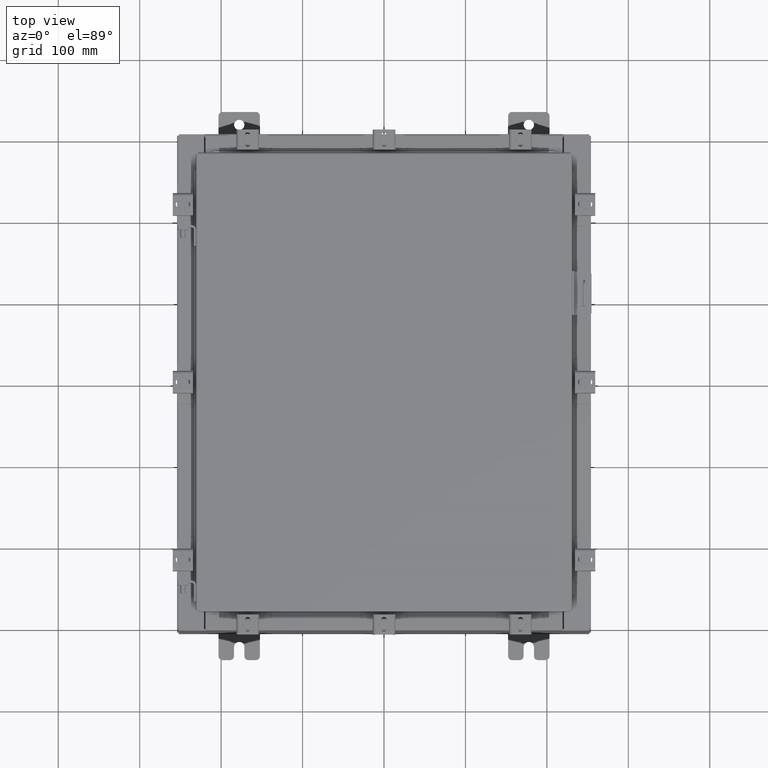
[diagram: clean part render]
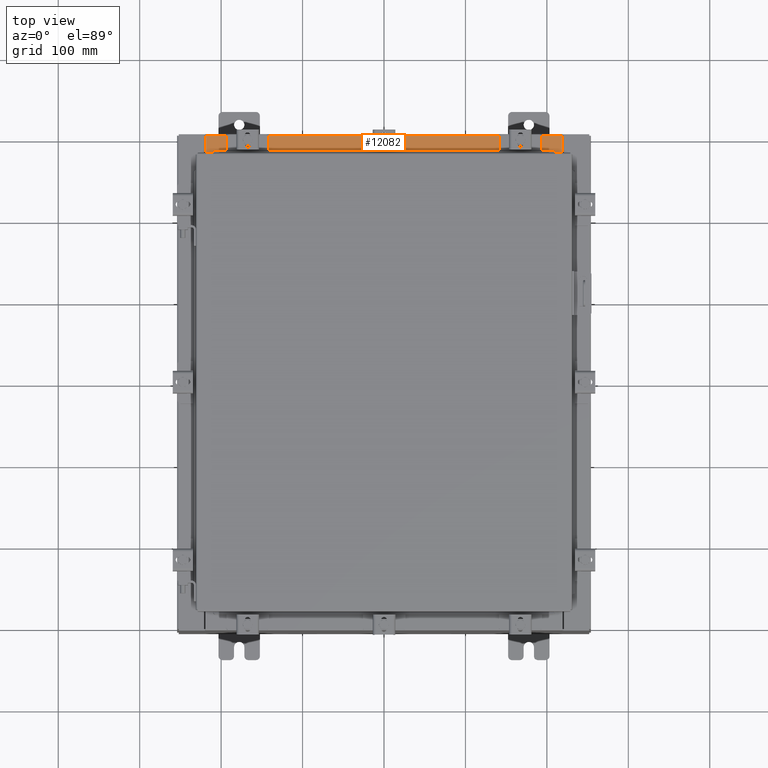
[diagram: same view with one face highlighted and labeled with its STEP entity id]
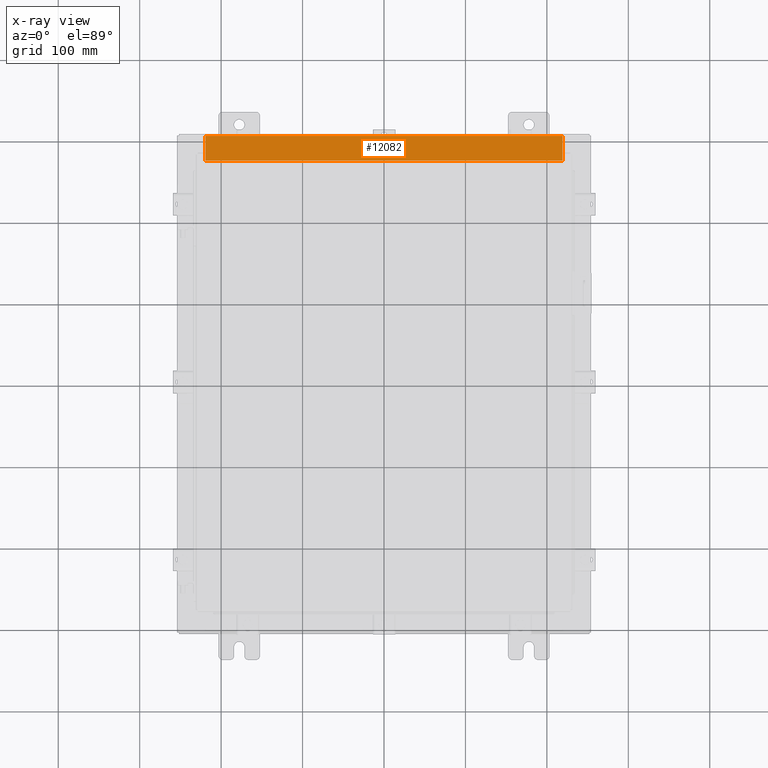
[diagram: x-ray of the same camera — body ghosted, the highlighted face saturated]
A machine part, top view. The second image highlights one B-rep face of the part: STEP entity #12082.
The next image is the same camera in x-ray: the body ghosted, the highlighted face saturated — about 0% of this face is hidden behind the body in this view.
In plain terms, the highlighted planar face has unit normal (0, 0, 1).
Its self-contained STEP definition (entity closure, byte-faithful):
#254 = PLANE ( 'NONE',  #12323 ) ;
#1150 = VERTEX_POINT ( 'NONE', #15856 ) ;
#1496 = VECTOR ( 'NONE', #10848, 39.37007874015748100 ) ;
#2033 = FACE_OUTER_BOUND ( 'NONE', #5697, .T. ) ;
#4188 = VECTOR ( 'NONE', #8013, 39.37007874015748100 ) ;
#4595 = DIRECTION ( 'NONE',  ( -0.0000000000000000000, 1.000000000000000000, -3.566381192773190000E-015 ) ) ;
#4713 = EDGE_CURVE ( 'NONE', #20583, #1150, #12197, .T. ) ;
#5697 = EDGE_LOOP ( 'NONE', ( #18927, #11697, #12382, #15291 ) ) ;
#6163 = LINE ( 'NONE', #16050, #1496 ) ;
#6488 = EDGE_CURVE ( 'NONE', #8874, #20583, #12922, .T. ) ;
#7447 = VECTOR ( 'NONE', #13438, 39.37007874015748100 ) ;
#7550 = VECTOR ( 'NONE', #4595, 39.37007874015748100 ) ;
#8013 = DIRECTION ( 'NONE',  ( -1.000000000000000000, 0.0000000000000000000, 0.0000000000000000000 ) ) ;
#8874 = VERTEX_POINT ( 'NONE', #20155 ) ;
#10848 = DIRECTION ( 'NONE',  ( -0.0000000000000000000, -1.000000000000000000, 3.566381192773190000E-015 ) ) ;
#11554 = EDGE_CURVE ( 'NONE', #20442, #8874, #6163, .T. ) ;
#11697 = ORIENTED_EDGE ( 'NONE', *, *, #6488, .F. ) ;
#11704 = CARTESIAN_POINT ( 'NONE',  ( 5.547702242495411600E-018, -0.08770000000000081900, 5.000000000000000000 ) ) ;
#11796 = CARTESIAN_POINT ( 'NONE',  ( -8.637200000000000000, -1.287299999999999200, 5.000000000000004400 ) ) ;
#12082 = ADVANCED_FACE ( 'NONE', ( #2033 ), #254, .T. ) ;
#12197 = LINE ( 'NONE', #20178, #7550 ) ;
#12323 = AXIS2_PLACEMENT_3D ( 'NONE', #21140, #17670, #12499 ) ;
#12382 = ORIENTED_EDGE ( 'NONE', *, *, #11554, .F. ) ;
#12499 = DIRECTION ( 'NONE',  ( 0.0000000000000000000, -1.000000000000000000, 3.566381192773190000E-015 ) ) ;
#12922 = LINE ( 'NONE', #20160, #4188 ) ;
#13438 = DIRECTION ( 'NONE',  ( -1.000000000000000000, -6.325772226333218300E-017, 2.256011509776178200E-031 ) ) ;
#15291 = ORIENTED_EDGE ( 'NONE', *, *, #17893, .T. ) ;
#15856 = CARTESIAN_POINT ( 'NONE',  ( -8.637200000000000000, -0.08770000000000081900, 5.000000000000000000 ) ) ;
#16050 = CARTESIAN_POINT ( 'NONE',  ( 8.637200000000000000, -1.300299999999999800, 5.000000000000004400 ) ) ;
#16696 = CARTESIAN_POINT ( 'NONE',  ( 8.637200000000000000, -0.08770000000000047200, 5.000000000000000000 ) ) ;
#17670 = DIRECTION ( 'NONE',  ( 0.0000000000000000000, 3.566381192773190000E-015, 1.000000000000000000 ) ) ;
#17893 = EDGE_CURVE ( 'NONE', #20442, #1150, #21306, .T. ) ;
#18927 = ORIENTED_EDGE ( 'NONE', *, *, #4713, .F. ) ;
#20155 = CARTESIAN_POINT ( 'NONE',  ( 8.637200000000000000, -1.287299999999999900, 5.000000000000004400 ) ) ;
#20160 = CARTESIAN_POINT ( 'NONE',  ( 8.637200000000000000, -1.287299999999999900, 5.000000000000003600 ) ) ;
#20178 = CARTESIAN_POINT ( 'NONE',  ( -8.637200000000000000, -0.07469999999999973900, 5.000000000000000000 ) ) ;
#20442 = VERTEX_POINT ( 'NONE', #16696 ) ;
#20583 = VERTEX_POINT ( 'NONE', #11796 ) ;
#21140 = CARTESIAN_POINT ( 'NONE',  ( 0.0000000000000000000, 1.782631094477737600E-014, 5.000000000000000000 ) ) ;
#21306 = LINE ( 'NONE', #11704, #7447 ) ;